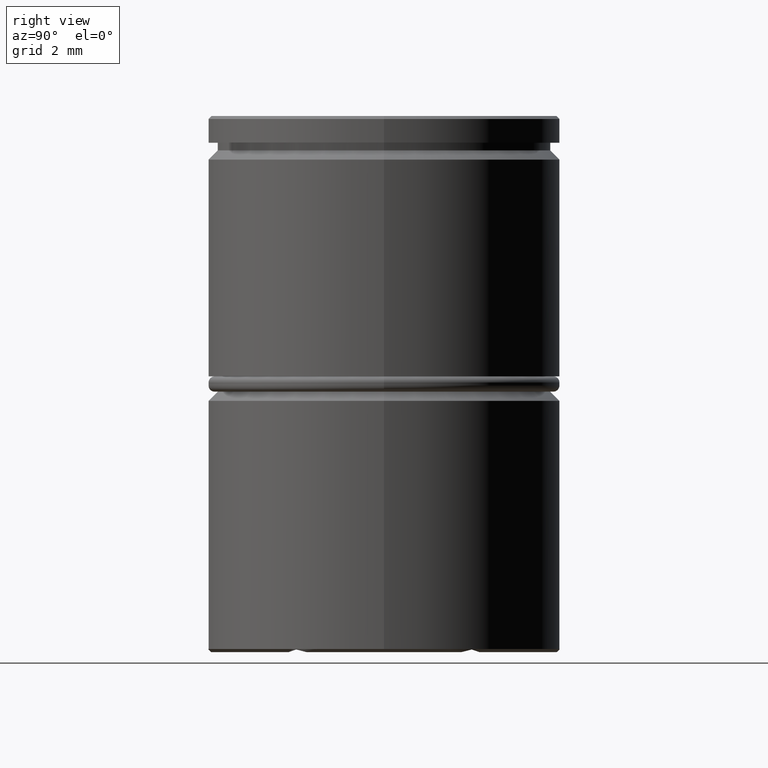
[diagram: clean part render]
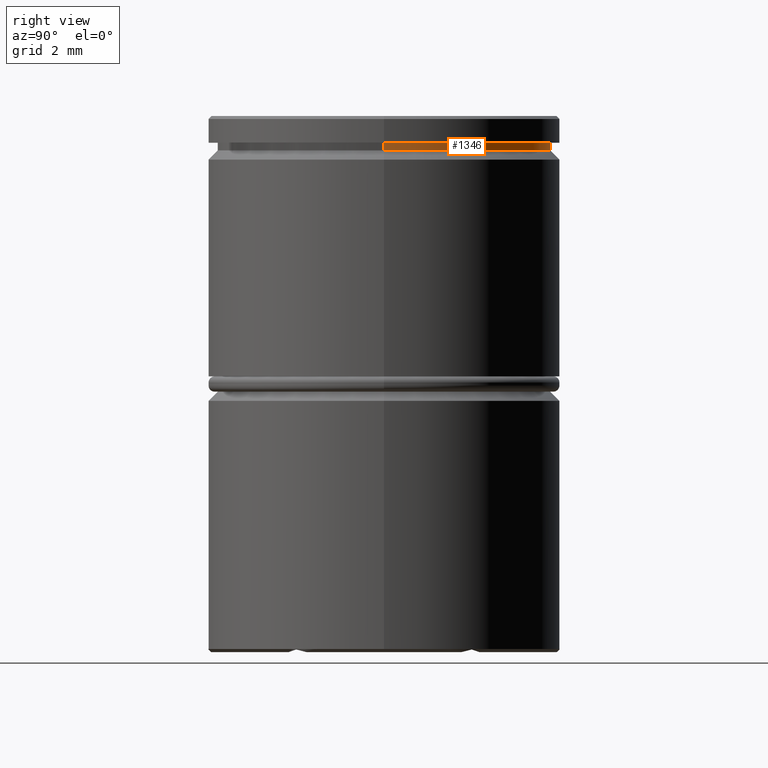
[diagram: same view with one face highlighted and labeled with its STEP entity id]
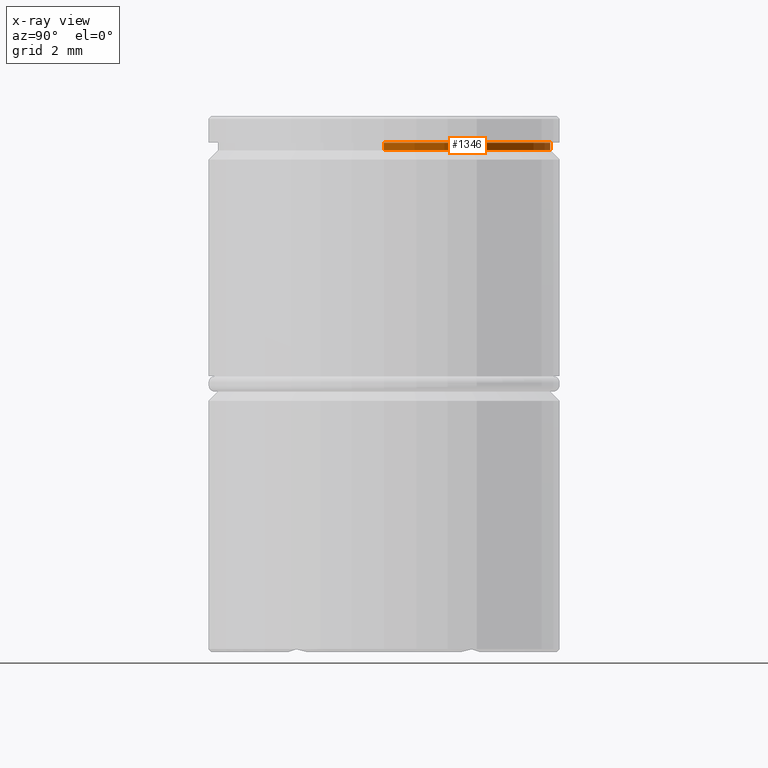
[diagram: x-ray of the same camera — body ghosted, the highlighted face saturated]
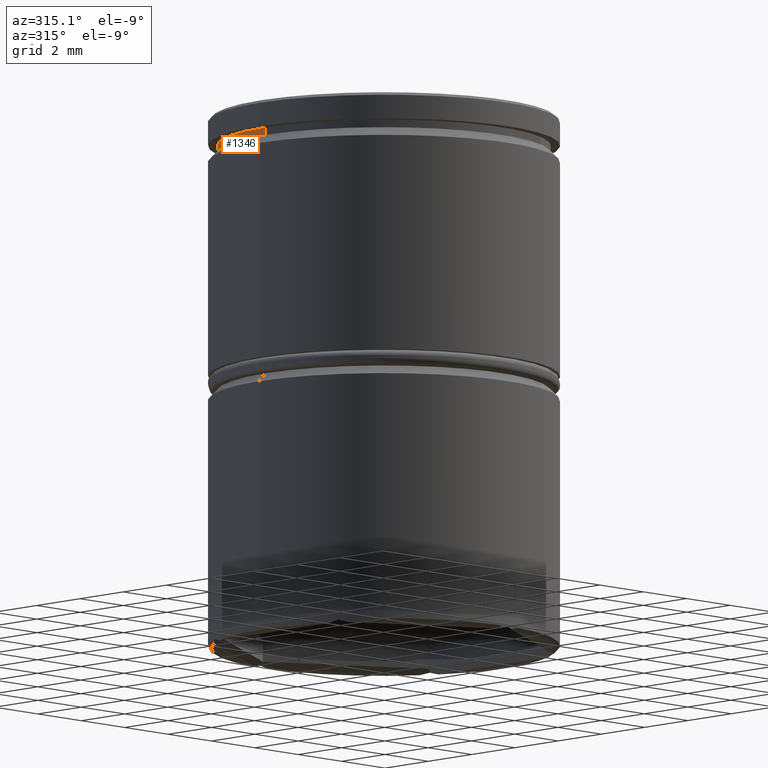
[diagram: same view with one face highlighted and labeled with its STEP entity id]
A machine part, right view. The second image highlights one B-rep face of the part: STEP entity #1346.
The next image is the same camera in x-ray: the body ghosted, the highlighted face saturated — about 0% of this face is hidden behind the body in this view.
A second angle (auxiliary view) of the same face is appended — the face is thin or edge-on in the first view.
In plain terms, the highlighted cylindrical surface (partial cylindrical patch) has radius 5.45 mm, axis along (-0, -0, 1).
Its self-contained STEP definition (entity closure, byte-faithful):
#78 = AXIS2_PLACEMENT_3D ( 'NONE', #1314, #577, #1013 ) ;
#87 = FACE_OUTER_BOUND ( 'NONE', #1354, .T. ) ;
#107 = AXIS2_PLACEMENT_3D ( 'NONE', #731, #1195, #1281 ) ;
#129 = CARTESIAN_POINT ( 'NONE',  ( 5.450000000000000178, 0.000000000000000000, -1.125000000000000222 ) ) ;
#141 = VECTOR ( 'NONE', #556, 1000.000000000000000 ) ;
#158 = EDGE_CURVE ( 'NONE', #662, #597, #477, .T. ) ;
#161 = ORIENTED_EDGE ( 'NONE', *, *, #479, .F. ) ;
#269 = ORIENTED_EDGE ( 'NONE', *, *, #1114, .T. ) ;
#270 = AXIS2_PLACEMENT_3D ( 'NONE', #505, #954, #852 ) ;
#471 = ORIENTED_EDGE ( 'NONE', *, *, #522, .T. ) ;
#477 = CIRCLE ( 'NONE', #107, 5.450000000000000178 ) ;
#479 = EDGE_CURVE ( 'NONE', #1085, #662, #572, .T. ) ;
#505 = CARTESIAN_POINT ( 'NONE',  ( 0.000000000000000000, 0.000000000000000000, 0.000000000000000000 ) ) ;
#522 = EDGE_CURVE ( 'NONE', #1085, #1318, #1256, .T. ) ;
#556 = DIRECTION ( 'NONE',  ( -0.000000000000000000, -0.000000000000000000, 1.000000000000000000 ) ) ;
#572 = LINE ( 'NONE', #1014, #1216 ) ;
#577 = DIRECTION ( 'NONE',  ( -0.000000000000000000, -0.000000000000000000, 1.000000000000000000 ) ) ;
#597 = VERTEX_POINT ( 'NONE', #655 ) ;
#655 = CARTESIAN_POINT ( 'NONE',  ( -5.450000000000000178, 6.674325055353075238E-16, -0.8749999999999998890 ) ) ;
#661 = CARTESIAN_POINT ( 'NONE',  ( -5.450000000000000178, 6.674325055353075238E-16, 0.000000000000000000 ) ) ;
#662 = VERTEX_POINT ( 'NONE', #867 ) ;
#676 = LINE ( 'NONE', #661, #141 ) ;
#731 = CARTESIAN_POINT ( 'NONE',  ( 0.000000000000000000, 0.000000000000000000, -0.8749999999999998890 ) ) ;
#819 = ORIENTED_EDGE ( 'NONE', *, *, #158, .F. ) ;
#852 = DIRECTION ( 'NONE',  ( 1.000000000000000000, 0.000000000000000000, 0.000000000000000000 ) ) ;
#867 = CARTESIAN_POINT ( 'NONE',  ( 5.450000000000000178, 0.000000000000000000, -0.8749999999999998890 ) ) ;
#954 = DIRECTION ( 'NONE',  ( -0.000000000000000000, -0.000000000000000000, 1.000000000000000000 ) ) ;
#1013 = DIRECTION ( 'NONE',  ( 1.000000000000000000, 0.000000000000000000, 0.000000000000000000 ) ) ;
#1014 = CARTESIAN_POINT ( 'NONE',  ( 5.450000000000000178, 0.000000000000000000, 0.000000000000000000 ) ) ;
#1024 = DIRECTION ( 'NONE',  ( -0.000000000000000000, -0.000000000000000000, 1.000000000000000000 ) ) ;
#1065 = CARTESIAN_POINT ( 'NONE',  ( -5.450000000000000178, 6.674325055353075238E-16, -1.125000000000000222 ) ) ;
#1085 = VERTEX_POINT ( 'NONE', #129 ) ;
#1114 = EDGE_CURVE ( 'NONE', #1318, #597, #676, .T. ) ;
#1195 = DIRECTION ( 'NONE',  ( -0.000000000000000000, -0.000000000000000000, 1.000000000000000000 ) ) ;
#1216 = VECTOR ( 'NONE', #1024, 1000.000000000000000 ) ;
#1256 = CIRCLE ( 'NONE', #78, 5.450000000000000178 ) ;
#1281 = DIRECTION ( 'NONE',  ( 1.000000000000000000, 0.000000000000000000, 0.000000000000000000 ) ) ;
#1314 = CARTESIAN_POINT ( 'NONE',  ( 0.000000000000000000, 0.000000000000000000, -1.125000000000000222 ) ) ;
#1318 = VERTEX_POINT ( 'NONE', #1065 ) ;
#1346 = ADVANCED_FACE ( 'NONE', ( #87 ), #1360, .T. ) ;
#1354 = EDGE_LOOP ( 'NONE', ( #471, #269, #819, #161 ) ) ;
#1360 = CYLINDRICAL_SURFACE ( 'NONE', #270, 5.450000000000000178 ) ;